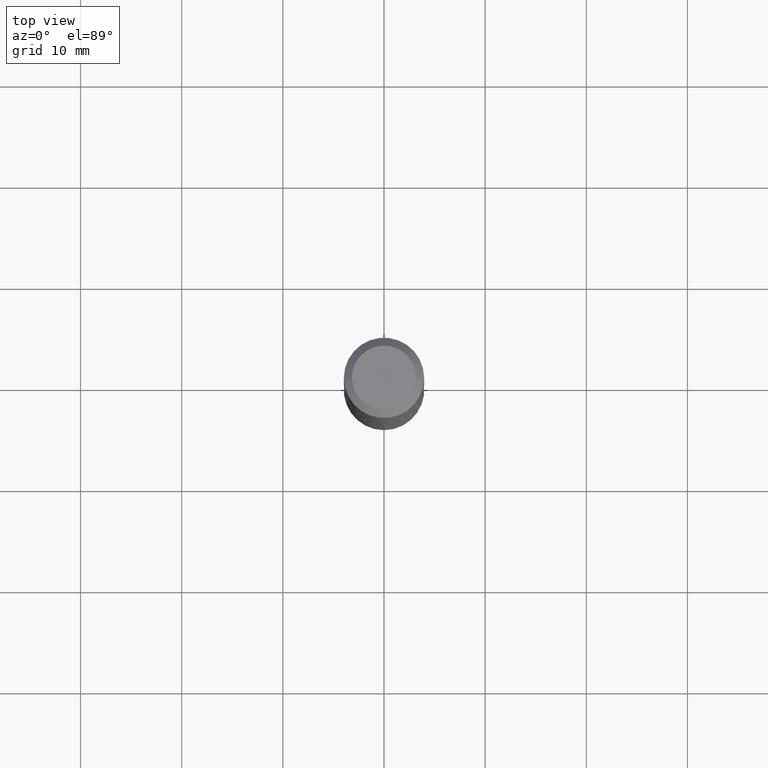
[diagram: clean part render]
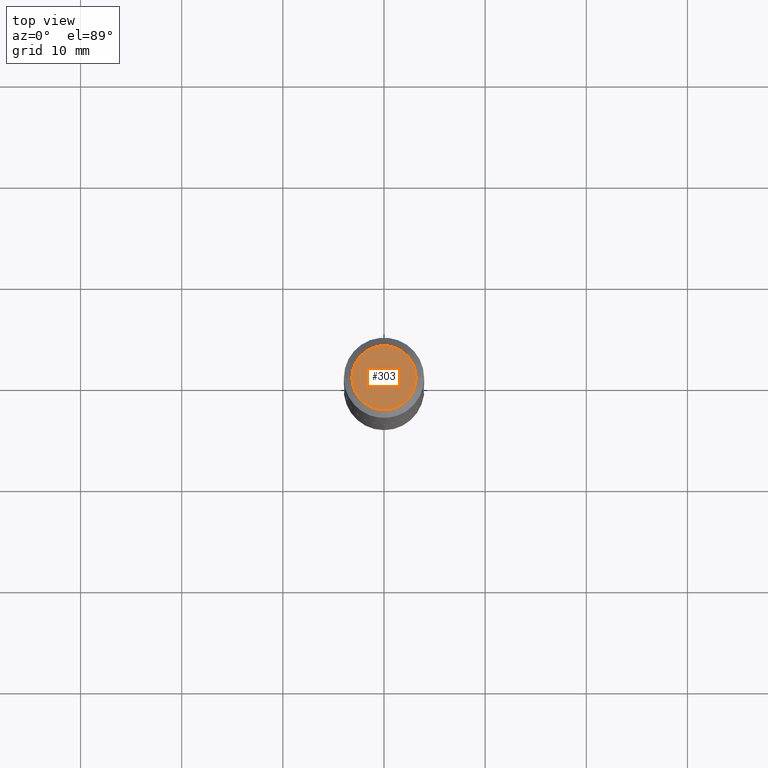
[diagram: same view with one face highlighted and labeled with its STEP entity id]
A machine part, top view. The second image highlights one B-rep face of the part: STEP entity #303.
In plain terms, the highlighted planar face has unit normal (0, -0, -1).
Its self-contained STEP definition (entity closure, byte-faithful):
#14 = CARTESIAN_POINT ( 'NONE',  ( -1.167985862904640673E-47, 1.667574263899824362E-33, 4.776122516674691392E-19 ) ) ;
#35 = CARTESIAN_POINT ( 'NONE',  ( -2.335971725809281346E-47, 3.335148527799648725E-33, 9.552245033349382783E-19 ) ) ;
#38 = CARTESIAN_POINT ( 'NONE',  ( -0.1250000000000000000, 9.274247306302067059E-16, 9.552245033286433763E-19 ) ) ;
#55 = CARTESIAN_POINT ( 'NONE',  ( 0.1250000000000000000, -1.019311926856046176E-15, 9.552245033415540403E-19 ) ) ;
#79 = FACE_OUTER_BOUND ( 'NONE', #103, .T. ) ;
#89 = CIRCLE ( 'NONE', #101, 0.1250000000000000000 ) ;
#101 = AXIS2_PLACEMENT_3D ( 'NONE', #35, #273, #209 ) ;
#103 = EDGE_LOOP ( 'NONE', ( #131, #123 ) ) ;
#123 = ORIENTED_EDGE ( 'NONE', *, *, #244, .T. ) ;
#131 = ORIENTED_EDGE ( 'NONE', *, *, #226, .T. ) ;
#158 = VERTEX_POINT ( 'NONE', #38 ) ;
#162 = CIRCLE ( 'NONE', #367, 0.1250000000000000000 ) ;
#171 = PLANE ( 'NONE',  #299 ) ;
#208 = DIRECTION ( 'NONE',  ( -2.445468806185136597E-29, 3.491481338843145583E-15, 1.000000000000000000 ) ) ;
#209 = DIRECTION ( 'NONE',  ( 1.000000000000000000, -6.982962677686266711E-15, 4.876147531933569011E-29 ) ) ;
#226 = EDGE_CURVE ( 'NONE', #158, #261, #162, .T. ) ;
#244 = EDGE_CURVE ( 'NONE', #261, #158, #89, .T. ) ;
#261 = VERTEX_POINT ( 'NONE', #55 ) ;
#273 = DIRECTION ( 'NONE',  ( -2.445468806185136597E-29, 3.491481338843145583E-15, 1.000000000000000000 ) ) ;
#281 = DIRECTION ( 'NONE',  ( 1.000000000000000000, -6.982962677686266711E-15, 4.876147531933569011E-29 ) ) ;
#299 = AXIS2_PLACEMENT_3D ( 'NONE', #14, #349, #378 ) ;
#303 = ADVANCED_FACE ( 'NONE', ( #79 ), #171, .F. ) ;
#347 = CARTESIAN_POINT ( 'NONE',  ( -2.335971725809281346E-47, 3.335148527799648725E-33, 9.552245033349382783E-19 ) ) ;
#349 = DIRECTION ( 'NONE',  ( 2.438088387897960049E-29, -3.491481338843145188E-15, -1.000000000000000000 ) ) ;
#367 = AXIS2_PLACEMENT_3D ( 'NONE', #347, #208, #281 ) ;
#378 = DIRECTION ( 'NONE',  ( -1.000000000000000000, 6.982962677686265922E-15, -4.876176775795935793E-29 ) ) ;